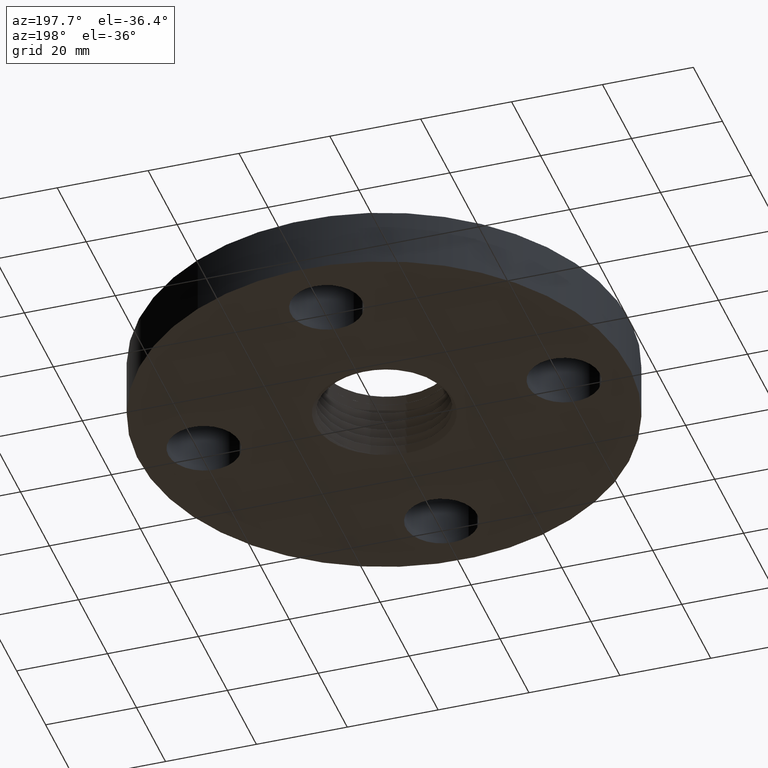
[diagram: clean part render]
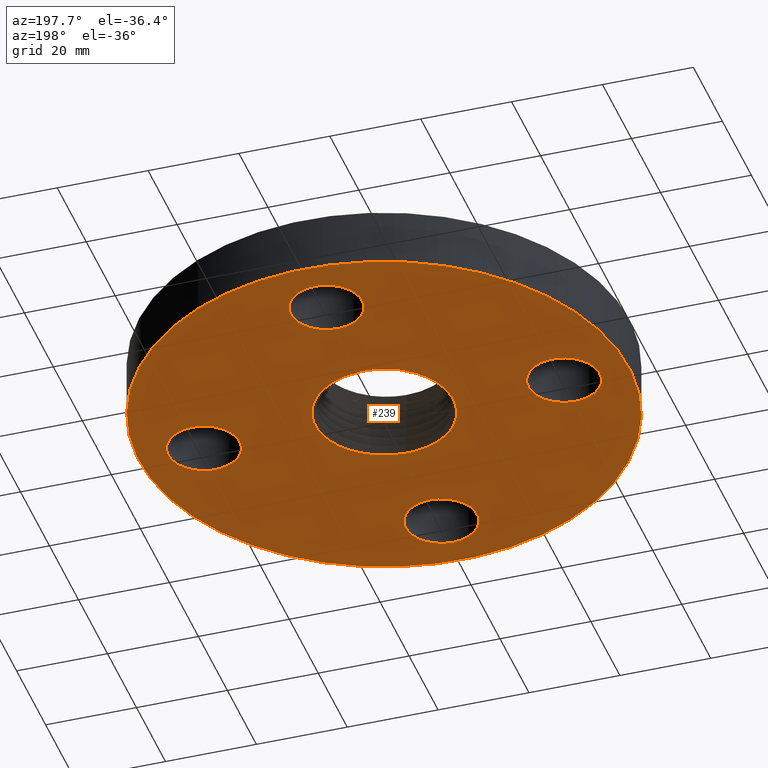
[diagram: same view with one face highlighted and labeled with its STEP entity id]
A machine part, auxiliary view. The second image highlights one B-rep face of the part: STEP entity #239.
In plain terms, the highlighted planar face has unit normal (0, 0, -1).
Its self-contained STEP definition (entity closure, byte-faithful):
#38=AXIS2_PLACEMENT_3D('Plane Axis2P3D',#35,#36,#37) ;
#42=AXIS2_PLACEMENT_3D('Circle Axis2P3D',#40,#41,$) ;
#51=AXIS2_PLACEMENT_3D('Circle Axis2P3D',#49,#50,$) ;
#155=AXIS2_PLACEMENT_3D('Circle Axis2P3D',#153,#154,$) ;
#169=AXIS2_PLACEMENT_3D('Circle Axis2P3D',#167,#168,$) ;
#178=AXIS2_PLACEMENT_3D('Circle Axis2P3D',#176,#177,$) ;
#187=AXIS2_PLACEMENT_3D('Circle Axis2P3D',#185,#186,$) ;
#196=AXIS2_PLACEMENT_3D('Circle Axis2P3D',#194,#195,$) ;
#205=AXIS2_PLACEMENT_3D('Circle Axis2P3D',#203,#204,$) ;
#214=AXIS2_PLACEMENT_3D('Circle Axis2P3D',#212,#213,$) ;
#223=AXIS2_PLACEMENT_3D('Circle Axis2P3D',#221,#222,$) ;
#232=AXIS2_PLACEMENT_3D('Circle Axis2P3D',#230,#231,$) ;
#35=CARTESIAN_POINT('Axis2P3D Location',(0.,0.,0.)) ;
#40=CARTESIAN_POINT('Axis2P3D Location',(0.,0.,0.)) ;
#44=CARTESIAN_POINT('Vertex',(1.01877926954,1.86486294402,2.09805925913E-016)) ;
#46=CARTESIAN_POINT('Vertex',(-1.01877926954,-1.86486294402,2.09805925913E-016)) ;
#49=CARTESIAN_POINT('Axis2P3D Location',(0.,0.,0.)) ;
#59=CARTESIAN_POINT('Control Point',(0.271300819459,-0.49668925246,0.)) ;
#60=CARTESIAN_POINT('Control Point',(0.262988386786,-0.50083496205,0.)) ;
#61=CARTESIAN_POINT('Control Point',(0.254594119688,-0.504808383252,0.)) ;
#62=CARTESIAN_POINT('Control Point',(0.246117048258,-0.508609747366,0.)) ;
#63=CARTESIAN_POINT('Control Point',(0.237573246251,-0.512231956004,0.)) ;
#64=CARTESIAN_POINT('Control Point',(0.228961996964,-0.51567574084,0.)) ;
#65=CARTESIAN_POINT('Vertex',(0.271300819459,-0.49668925246,7.64917438226E-018)) ;
#67=CARTESIAN_POINT('Vertex',(0.228962208832,-0.515676198588,-3.37369520841E-007)) ;
#71=CARTESIAN_POINT('Control Point',(6.51650530291E-006,0.621744848052,0.)) ;
#72=CARTESIAN_POINT('Control Point',(0.0613604519282,0.619660112943,0.)) ;
#73=CARTESIAN_POINT('Control Point',(0.122335963878,0.61000273541,0.)) ;
#74=CARTESIAN_POINT('Control Point',(0.181672728772,0.592832218733,0.)) ;
#75=CARTESIAN_POINT('Control Point',(0.294596205245,0.544234292237,0.)) ;
#76=CARTESIAN_POINT('Control Point',(0.391736831402,0.469740122548,0.)) ;
#77=CARTESIAN_POINT('Control Point',(0.435296256829,0.426664714957,0.)) ;
#78=CARTESIAN_POINT('Control Point',(0.497991802558,0.346729485807,0.)) ;
#79=CARTESIAN_POINT('Control Point',(0.542445517401,0.256239353293,0.)) ;
#80=CARTESIAN_POINT('Control Point',(0.557115568759,0.218690324298,0.)) ;
#81=CARTESIAN_POINT('Control Point',(0.585679183813,0.12232410461,0.)) ;
#82=CARTESIAN_POINT('Control Point',(0.593532273664,0.0220494448498,0.)) ;
#83=CARTESIAN_POINT('Control Point',(0.590547899106,-0.0382472833201,0.)) ;
#84=CARTESIAN_POINT('Control Point',(0.569378787158,-0.15648500968,0.)) ;
#85=CARTESIAN_POINT('Control Point',(0.519448374121,-0.265109244793,0.)) ;
#86=CARTESIAN_POINT('Control Point',(0.4876911436,-0.315813838854,0.)) ;
#87=CARTESIAN_POINT('Control Point',(0.428508254403,-0.387738376123,0.)) ;
#88=CARTESIAN_POINT('Control Point',(0.356836133186,-0.445905364169,0.)) ;
#89=CARTESIAN_POINT('Control Point',(0.329507974987,-0.464952791738,0.)) ;
#90=CARTESIAN_POINT('Control Point',(0.300924018822,-0.481915095826,0.)) ;
#91=CARTESIAN_POINT('Control Point',(0.271300819459,-0.49668925246,0.)) ;
#92=CARTESIAN_POINT('Vertex',(6.51650530394E-006,0.621744848052,5.46369598733E-019)) ;
#96=CARTESIAN_POINT('Control Point',(-0.303142075985,0.554900272472,0.)) ;
#97=CARTESIAN_POINT('Control Point',(-0.252449467496,0.58043453822,0.)) ;
#98=CARTESIAN_POINT('Control Point',(-0.198978103296,0.60023315247,0.)) ;
#99=CARTESIAN_POINT('Control Point',(-0.143568747804,0.613879395235,0.)) ;
#100=CARTESIAN_POINT('Control Point',(-0.0810364343854,0.621939634771,0.)) ;
#101=CARTESIAN_POINT('Control Point',(-0.0185075155188,0.6221439187,0.)) ;
#102=CARTESIAN_POINT('Control Point',(-0.0123320932154,0.622087452566,0.)) ;
#103=CARTESIAN_POINT('Control Point',(-0.006160878345,0.621954408935,0.)) ;
#104=CARTESIAN_POINT('Control Point',(6.51650530396E-006,0.621744848052,0.)) ;
#105=CARTESIAN_POINT('Vertex',(-0.303142075985,0.554900272472,0.)) ;
#109=CARTESIAN_POINT('Control Point',(-0.309805269795,0.551494367179,0.)) ;
#110=CARTESIAN_POINT('Control Point',(-0.30847656217,0.552183488654,0.)) ;
#111=CARTESIAN_POINT('Control Point',(-0.307145875209,0.552868646817,0.)) ;
#112=CARTESIAN_POINT('Control Point',(-0.305813204151,0.553549844168,0.)) ;
#113=CARTESIAN_POINT('Control Point',(-0.304478605952,0.55422705181,0.)) ;
#114=CARTESIAN_POINT('Control Point',(-0.303142075985,0.554900272472,0.)) ;
#115=CARTESIAN_POINT('Vertex',(-0.309805269795,0.551494367179,-6.55643518479E-018)) ;
#119=CARTESIAN_POINT('Control Point',(-0.309805269795,0.551494367179,0.)) ;
#120=CARTESIAN_POINT('Control Point',(-0.362634418714,0.519198263465,0.)) ;
#121=CARTESIAN_POINT('Control Point',(-0.411393507415,0.480504504574,0.)) ;
#122=CARTESIAN_POINT('Control Point',(-0.455026470075,0.436081809431,0.)) ;
#123=CARTESIAN_POINT('Control Point',(-0.530288586176,0.337641221768,0.)) ;
#124=CARTESIAN_POINT('Control Point',(-0.57909972279,0.224371956548,0.)) ;
#125=CARTESIAN_POINT('Control Point',(-0.596287254031,0.165101904151,0.)) ;
#126=CARTESIAN_POINT('Control Point',(-0.612320376249,0.0640407690707,0.)) ;
#127=CARTESIAN_POINT('Control Point',(-0.607284640368,-0.0373505268734,0.)) ;
#128=CARTESIAN_POINT('Control Point',(-0.601894030713,-0.0775795515467,0.)) ;
#129=CARTESIAN_POINT('Control Point',(-0.580115727843,-0.176402922853,0.)) ;
#130=CARTESIAN_POINT('Control Point',(-0.538332780503,-0.268595473064,0.)) ;
#131=CARTESIAN_POINT('Control Point',(-0.506465222116,-0.320304672132,0.)) ;
#132=CARTESIAN_POINT('Control Point',(-0.430555471135,-0.414331020631,0.)) ;
#133=CARTESIAN_POINT('Control Point',(-0.334094282218,-0.486062988049,0.)) ;
#134=CARTESIAN_POINT('Control Point',(-0.281643222405,-0.515502270861,0.)) ;
#135=CARTESIAN_POINT('Control Point',(-0.194092979479,-0.55079847989,0.)) ;
#136=CARTESIAN_POINT('Control Point',(-0.10212139719,-0.567737030499,0.)) ;
#137=CARTESIAN_POINT('Control Point',(-0.0680828019943,-0.571419681268,0.)) ;
#138=CARTESIAN_POINT('Control Point',(-0.0339479817089,-0.572557780042,0.)) ;
#139=CARTESIAN_POINT('Control Point',(2.82510250744E-005,-0.571167543674,0.)) ;
#140=CARTESIAN_POINT('Vertex',(2.82510250744E-005,-0.571167543674,-3.2782175924E-018)) ;
#144=CARTESIAN_POINT('Control Point',(2.82510250743E-005,-0.571167543674,0.)) ;
#145=CARTESIAN_POINT('Control Point',(0.0339259694613,-0.569780520057,0.)) ;
#146=CARTESIAN_POINT('Control Point',(0.0676658199363,-0.565876825173,0.)) ;
#147=CARTESIAN_POINT('Control Point',(0.101000703336,-0.559471327717,0.)) ;
#148=CARTESIAN_POINT('Control Point',(0.133679482577,-0.550619772413,0.)) ;
#149=CARTESIAN_POINT('Control Point',(0.165467395582,-0.539411557014,0.)) ;
#150=CARTESIAN_POINT('Vertex',(0.165467760755,-0.539412726809,6.50313588526E-007)) ;
#153=CARTESIAN_POINT('Axis2P3D Location',(-6.99353086378E-017,6.99353086378E-017,0.)) ;
#167=CARTESIAN_POINT('Axis2P3D Location',(1.56000000001,-1.04902962957E-016,0.)) ;
#171=CARTESIAN_POINT('Vertex',(1.83205059419,-0.148621916968,0.)) ;
#173=CARTESIAN_POINT('Vertex',(1.28794940582,0.148621916968,0.)) ;
#176=CARTESIAN_POINT('Axis2P3D Location',(1.56000000001,1.04902962957E-016,0.)) ;
#185=CARTESIAN_POINT('Axis2P3D Location',(-2.44773580232E-016,-1.56000000001,0.)) ;
#189=CARTESIAN_POINT('Vertex',(0.148621916968,-1.28794940582,0.)) ;
#191=CARTESIAN_POINT('Vertex',(-0.148621916968,-1.83205059419,0.)) ;
#194=CARTESIAN_POINT('Axis2P3D Location',(-3.1470888887E-016,-1.56000000001,0.)) ;
#203=CARTESIAN_POINT('Axis2P3D Location',(-1.56000000001,-1.74838271595E-016,0.)) ;
#207=CARTESIAN_POINT('Vertex',(-1.28794940582,-0.148621916968,0.)) ;
#209=CARTESIAN_POINT('Vertex',(-1.83205059419,0.148621916968,0.)) ;
#212=CARTESIAN_POINT('Axis2P3D Location',(-1.56000000001,-2.44773580232E-016,0.)) ;
#221=CARTESIAN_POINT('Axis2P3D Location',(-4.54579506146E-016,1.56000000001,0.)) ;
#225=CARTESIAN_POINT('Vertex',(-0.148621916968,1.28794940582,0.)) ;
#227=CARTESIAN_POINT('Vertex',(0.148621916968,1.83205059419,0.)) ;
#230=CARTESIAN_POINT('Axis2P3D Location',(-1.74838271595E-016,1.56000000001,0.)) ;
#36=DIRECTION('Axis2P3D Direction',(0.,0.,-0.0393700787402)) ;
#37=DIRECTION('Axis2P3D XDirection',(0.0393700787402,0.,0.)) ;
#41=DIRECTION('Axis2P3D Direction',(0.,0.,-0.0393700787402)) ;
#50=DIRECTION('Axis2P3D Direction',(0.,0.,-0.0393700787402)) ;
#154=DIRECTION('Axis2P3D Direction',(0.,0.,-0.0393700787402)) ;
#168=DIRECTION('Axis2P3D Direction',(0.,0.,-0.0393700787402)) ;
#177=DIRECTION('Axis2P3D Direction',(0.,0.,-0.0393700787402)) ;
#186=DIRECTION('Axis2P3D Direction',(0.,0.,-0.0393700787402)) ;
#195=DIRECTION('Axis2P3D Direction',(0.,0.,-0.0393700787402)) ;
#204=DIRECTION('Axis2P3D Direction',(0.,0.,-0.0393700787402)) ;
#213=DIRECTION('Axis2P3D Direction',(0.,0.,-0.0393700787402)) ;
#222=DIRECTION('Axis2P3D Direction',(0.,0.,-0.0393700787402)) ;
#231=DIRECTION('Axis2P3D Direction',(0.,0.,-0.0393700787402)) ;
#55=ORIENTED_EDGE('',*,*,#48,.T.) ;
#56=ORIENTED_EDGE('',*,*,#53,.T.) ;
#159=ORIENTED_EDGE('',*,*,#69,.F.) ;
#160=ORIENTED_EDGE('',*,*,#94,.F.) ;
#161=ORIENTED_EDGE('',*,*,#107,.F.) ;
#162=ORIENTED_EDGE('',*,*,#117,.F.) ;
#163=ORIENTED_EDGE('',*,*,#142,.T.) ;
#164=ORIENTED_EDGE('',*,*,#152,.T.) ;
#165=ORIENTED_EDGE('',*,*,#157,.F.) ;
#182=ORIENTED_EDGE('',*,*,#175,.F.) ;
#183=ORIENTED_EDGE('',*,*,#180,.F.) ;
#200=ORIENTED_EDGE('',*,*,#193,.F.) ;
#201=ORIENTED_EDGE('',*,*,#198,.F.) ;
#218=ORIENTED_EDGE('',*,*,#211,.F.) ;
#219=ORIENTED_EDGE('',*,*,#216,.F.) ;
#236=ORIENTED_EDGE('',*,*,#229,.F.) ;
#237=ORIENTED_EDGE('',*,*,#234,.F.) ;
#166=FACE_BOUND('',#158,.T.) ;
#184=FACE_BOUND('',#181,.T.) ;
#202=FACE_BOUND('',#199,.T.) ;
#220=FACE_BOUND('',#217,.T.) ;
#238=FACE_BOUND('',#235,.T.) ;
#239=ADVANCED_FACE('PartBody',(#57,#166,#184,#202,#220,#238),#39,.T.) ;
#58=B_SPLINE_CURVE_WITH_KNOTS('',5,(#59,#60,#61,#62,#63,#64),.UNSPECIFIED.,.F.,.U.,(6,6),(0.,1.71571494962),.UNSPECIFIED.) ;
#70=B_SPLINE_CURVE_WITH_KNOTS('',5,(#71,#72,#73,#74,#75,#76,#77,#78,#79,#80,#81,#82,#83,#84,#85,#86,#87,#88,#89,#90,#91),.UNSPECIFIED.,.F.,.U.,(6,3,3,3,3,3,6),(0.,10.8250341247,21.6513868757,28.8651817636,39.6835710417,50.5062207111,56.6205518643),.UNSPECIFIED.) ;
#95=B_SPLINE_CURVE_WITH_KNOTS('',5,(#96,#97,#98,#99,#100,#101,#102,#103,#104),.UNSPECIFIED.,.F.,.U.,(6,3,6),(0.,9.93047563156,11.0186252222),.UNSPECIFIED.) ;
#108=B_SPLINE_CURVE_WITH_KNOTS('',5,(#109,#110,#111,#112,#113,#114),.UNSPECIFIED.,.F.,.U.,(6,6),(0.,0.261820779537),.UNSPECIFIED.) ;
#118=B_SPLINE_CURVE_WITH_KNOTS('',5,(#119,#120,#121,#122,#123,#124,#125,#126,#127,#128,#129,#130,#131,#132,#133,#134,#135,#136,#137,#138,#139),.UNSPECIFIED.,.F.,.U.,(6,3,3,3,3,3,6),(0.,10.831363253,21.6658833749,28.8864151752,39.7171345707,50.5552199996,56.8197560824),.UNSPECIFIED.) ;
#143=B_SPLINE_CURVE_WITH_KNOTS('',5,(#144,#145,#146,#147,#148,#149),.UNSPECIFIED.,.F.,.U.,(6,6),(0.,6.25005961972),.UNSPECIFIED.) ;
#43=CIRCLE('generated circle',#42,2.12500000001) ;
#52=CIRCLE('generated circle',#51,2.12500000001) ;
#156=CIRCLE('generated circle',#155,0.564221274643) ;
#170=CIRCLE('generated circle',#169,0.310000000001) ;
#179=CIRCLE('generated circle',#178,0.310000000001) ;
#188=CIRCLE('generated circle',#187,0.310000000001) ;
#197=CIRCLE('generated circle',#196,0.310000000001) ;
#206=CIRCLE('generated circle',#205,0.310000000001) ;
#215=CIRCLE('generated circle',#214,0.310000000001) ;
#224=CIRCLE('generated circle',#223,0.310000000001) ;
#233=CIRCLE('generated circle',#232,0.310000000001) ;
#48=EDGE_CURVE('',#45,#47,#43,.T.) ;
#53=EDGE_CURVE('',#47,#45,#52,.T.) ;
#69=EDGE_CURVE('',#66,#68,#58,.T.) ;
#94=EDGE_CURVE('',#93,#66,#70,.T.) ;
#107=EDGE_CURVE('',#106,#93,#95,.T.) ;
#117=EDGE_CURVE('',#116,#106,#108,.T.) ;
#142=EDGE_CURVE('',#116,#141,#118,.T.) ;
#152=EDGE_CURVE('',#141,#151,#143,.T.) ;
#157=EDGE_CURVE('',#68,#151,#156,.T.) ;
#175=EDGE_CURVE('',#172,#174,#170,.T.) ;
#180=EDGE_CURVE('',#174,#172,#179,.T.) ;
#193=EDGE_CURVE('',#190,#192,#188,.T.) ;
#198=EDGE_CURVE('',#192,#190,#197,.T.) ;
#211=EDGE_CURVE('',#208,#210,#206,.T.) ;
#216=EDGE_CURVE('',#210,#208,#215,.T.) ;
#229=EDGE_CURVE('',#226,#228,#224,.T.) ;
#234=EDGE_CURVE('',#228,#226,#233,.T.) ;
#54=EDGE_LOOP('',(#55,#56)) ;
#158=EDGE_LOOP('',(#159,#160,#161,#162,#163,#164,#165)) ;
#181=EDGE_LOOP('',(#182,#183)) ;
#199=EDGE_LOOP('',(#200,#201)) ;
#217=EDGE_LOOP('',(#218,#219)) ;
#235=EDGE_LOOP('',(#236,#237)) ;
#57=FACE_OUTER_BOUND('',#54,.T.) ;
#39=PLANE('',#38) ;
#45=VERTEX_POINT('',#44) ;
#47=VERTEX_POINT('',#46) ;
#66=VERTEX_POINT('',#65) ;
#68=VERTEX_POINT('',#67) ;
#93=VERTEX_POINT('',#92) ;
#106=VERTEX_POINT('',#105) ;
#116=VERTEX_POINT('',#115) ;
#141=VERTEX_POINT('',#140) ;
#151=VERTEX_POINT('',#150) ;
#172=VERTEX_POINT('',#171) ;
#174=VERTEX_POINT('',#173) ;
#190=VERTEX_POINT('',#189) ;
#192=VERTEX_POINT('',#191) ;
#208=VERTEX_POINT('',#207) ;
#210=VERTEX_POINT('',#209) ;
#226=VERTEX_POINT('',#225) ;
#228=VERTEX_POINT('',#227) ;